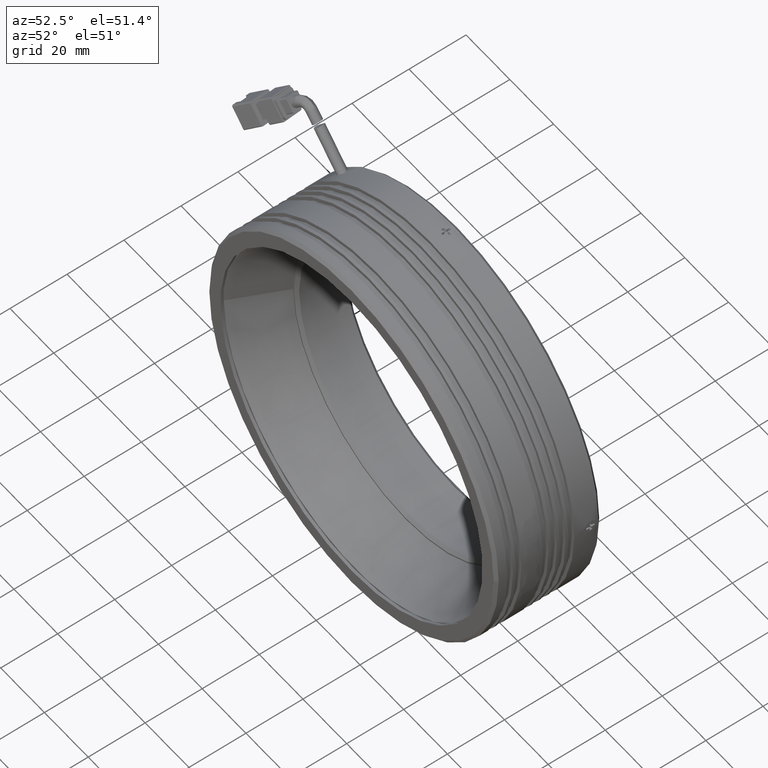
[diagram: clean part render]
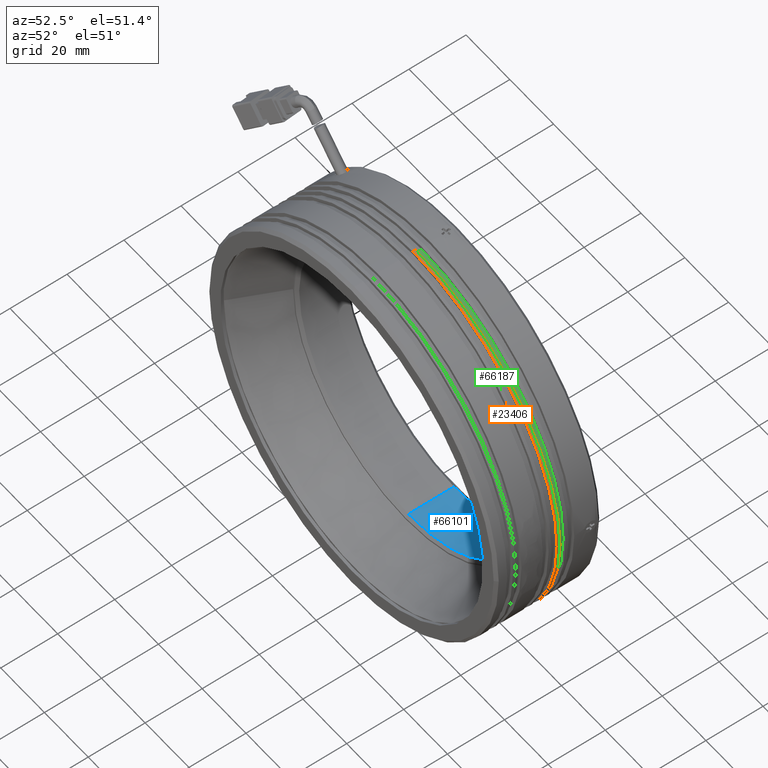
[diagram: same view with three faces highlighted in distinct colors, each labeled with its STEP entity id]
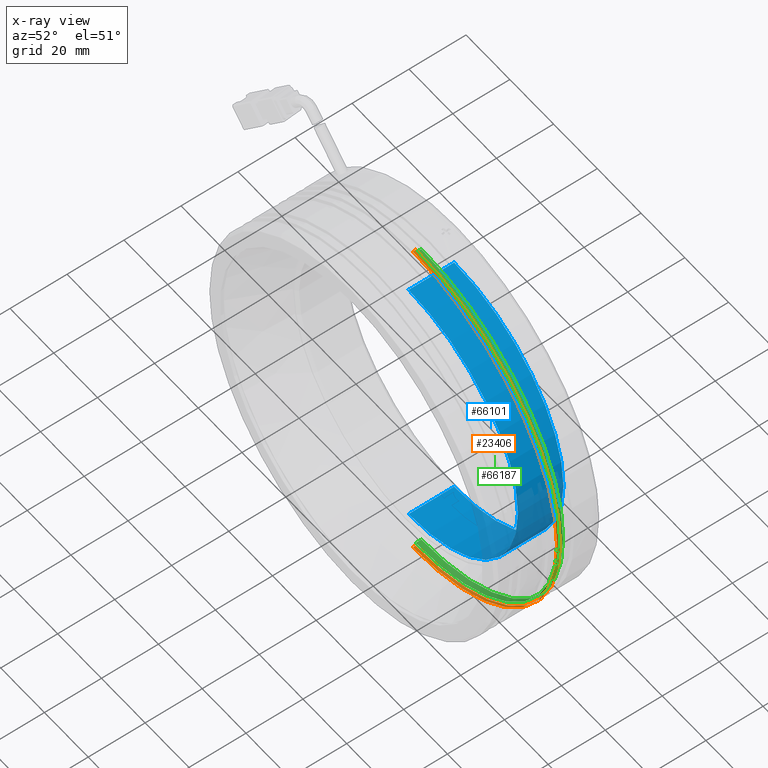
[diagram: x-ray of the same camera — body ghosted, the three highlighted faces saturated]
A machine part, auxiliary view with three faces highlighted in distinct colors.
The next image is the same camera in x-ray (body ghosted, the three faces saturated) — at least one of them is partly hidden behind the body in this view.
Their STEP definitions:

[orange] entity #23406 — the highlighted cylindrical surface (partial cylindrical patch) has radius 66 mm, axis along (-0, -1, -0).
#3441 = EDGE_CURVE ( 'NONE', #9244, #9392, #8425, .T. ) ;
#4820 = ORIENTED_EDGE ( 'NONE', *, *, #14331, .T. ) ;
#5158 = AXIS2_PLACEMENT_3D ( 'NONE', #28166, #66901, #33725 ) ;
#5260 = DIRECTION ( 'NONE',  ( -0.0000000000000000000, -1.000000000000000000, -0.0000000000000000000 ) ) ;
#5641 = ORIENTED_EDGE ( 'NONE', *, *, #3441, .F. ) ;
#7309 = CARTESIAN_POINT ( 'NONE',  ( -22.28931969498006900, 15.64734950584006500, 66.00000000000000000 ) ) ;
#8420 = CARTESIAN_POINT ( 'NONE',  ( -22.28931969498007600, 16.64734950584005100, 0.0000000000000000000 ) ) ;
#8425 = CIRCLE ( 'NONE', #40878, 66.00000000000000000 ) ;
#9244 = VERTEX_POINT ( 'NONE', #30795 ) ;
#9392 = VERTEX_POINT ( 'NONE', #64945 ) ;
#10042 = CYLINDRICAL_SURFACE ( 'NONE', #53527, 66.00000000000000000 ) ;
#10767 = EDGE_CURVE ( 'NONE', #17306, #14867, #47878, .T. ) ;
#14013 = DIRECTION ( 'NONE',  ( 0.0000000000000000000, 0.0000000000000000000, -1.000000000000000000 ) ) ;
#14331 = EDGE_CURVE ( 'NONE', #9244, #17306, #42609, .T. ) ;
#14867 = VERTEX_POINT ( 'NONE', #70782 ) ;
#17007 = FACE_OUTER_BOUND ( 'NONE', #43320, .T. ) ;
#17306 = VERTEX_POINT ( 'NONE', #7309 ) ;
#23406 = ADVANCED_FACE ( 'NONE', ( #17007 ), #10042, .T. ) ;
#27103 = CARTESIAN_POINT ( 'NONE',  ( -22.28931969498006900, -31.13173980934526600, 66.00000000000000000 ) ) ;
#27911 = DIRECTION ( 'NONE',  ( -0.0000000000000000000, -1.000000000000000000, -0.0000000000000000000 ) ) ;
#28166 = CARTESIAN_POINT ( 'NONE',  ( -22.28931969498007600, 15.64734950584006500, 0.0000000000000000000 ) ) ;
#30795 = CARTESIAN_POINT ( 'NONE',  ( -22.28931969498006900, 16.64734950584005100, 66.00000000000000000 ) ) ;
#31725 = CARTESIAN_POINT ( 'NONE',  ( -22.28931969498007600, -31.13173980934526600, 0.0000000000000000000 ) ) ;
#32689 = VECTOR ( 'NONE', #27911, 1000.000000000000000 ) ;
#33725 = DIRECTION ( 'NONE',  ( 0.0000000000000000000, 0.0000000000000000000, -1.000000000000000000 ) ) ;
#40878 = AXIS2_PLACEMENT_3D ( 'NONE', #8420, #47164, #14013 ) ;
#42609 = LINE ( 'NONE', #27103, #55618 ) ;
#43320 = EDGE_LOOP ( 'NONE', ( #5641, #4820, #45214, #70456 ) ) ;
#45214 = ORIENTED_EDGE ( 'NONE', *, *, #10767, .T. ) ;
#47164 = DIRECTION ( 'NONE',  ( 0.0000000000000000000, 1.000000000000000000, 0.0000000000000000000 ) ) ;
#47395 = LINE ( 'NONE', #66640, #32689 ) ;
#47878 = CIRCLE ( 'NONE', #5158, 66.00000000000000000 ) ;
#48165 = DIRECTION ( 'NONE',  ( -0.0000000000000000000, -1.000000000000000000, -0.0000000000000000000 ) ) ;
#51141 = EDGE_CURVE ( 'NONE', #9392, #14867, #47395, .T. ) ;
#53527 = AXIS2_PLACEMENT_3D ( 'NONE', #31725, #48165, #65180 ) ;
#55618 = VECTOR ( 'NONE', #5260, 1000.000000000000000 ) ;
#64945 = CARTESIAN_POINT ( 'NONE',  ( -22.28931969498007600, 16.64734950584005100, -66.00000000000000000 ) ) ;
#65180 = DIRECTION ( 'NONE',  ( 0.0000000000000000000, 0.0000000000000000000, -1.000000000000000000 ) ) ;
#66640 = CARTESIAN_POINT ( 'NONE',  ( -22.28931969498007600, -31.13173980934526600, -66.00000000000000000 ) ) ;
#66901 = DIRECTION ( 'NONE',  ( 0.0000000000000000000, 1.000000000000000000, 0.0000000000000000000 ) ) ;
#70456 = ORIENTED_EDGE ( 'NONE', *, *, #51141, .F. ) ;
#70782 = CARTESIAN_POINT ( 'NONE',  ( -22.28931969498007600, 15.64734950584006500, -66.00000000000000000 ) ) ;

[blue] entity #66101 — the highlighted cylindrical surface (partial cylindrical patch) has radius 50 mm, axis along (-0, -1, -0).
#4519 = LINE ( 'NONE', #15292, #61723 ) ;
#4693 = EDGE_CURVE ( 'NONE', #11871, #69297, #9749, .T. ) ;
#9294 = CARTESIAN_POINT ( 'NONE',  ( -22.28931969498007600, 14.14734950584004700, 0.0000000000000000000 ) ) ;
#9749 = CIRCLE ( 'NONE', #32183, 50.00000000000000000 ) ;
#10976 = ORIENTED_EDGE ( 'NONE', *, *, #25032, .F. ) ;
#11871 = VERTEX_POINT ( 'NONE', #50090 ) ;
#14686 = CARTESIAN_POINT ( 'NONE',  ( -22.28931969498007600, -33.34033393323987600, 0.0000000000000000000 ) ) ;
#14887 = DIRECTION ( 'NONE',  ( 0.0000000000000000000, 0.0000000000000000000, -1.000000000000000000 ) ) ;
#15292 = CARTESIAN_POINT ( 'NONE',  ( -22.28931969498006900, -33.34033393323987600, 50.00000000000000000 ) ) ;
#15613 = CARTESIAN_POINT ( 'NONE',  ( -22.28931969498007600, 30.14734950584002600, 0.0000000000000000000 ) ) ;
#21715 = LINE ( 'NONE', #63433, #36469 ) ;
#22153 = DIRECTION ( 'NONE',  ( 0.0000000000000000000, 0.0000000000000000000, 1.000000000000000000 ) ) ;
#24681 = DIRECTION ( 'NONE',  ( -0.0000000000000000000, -1.000000000000000000, -0.0000000000000000000 ) ) ;
#24813 = ORIENTED_EDGE ( 'NONE', *, *, #4693, .F. ) ;
#25032 = EDGE_CURVE ( 'NONE', #69240, #11871, #4519, .T. ) ;
#25968 = DIRECTION ( 'NONE',  ( -0.0000000000000000000, -1.000000000000000000, -0.0000000000000000000 ) ) ;
#28020 = EDGE_CURVE ( 'NONE', #36903, #69297, #21715, .T. ) ;
#31396 = DIRECTION ( 'NONE',  ( -0.0000000000000000000, -1.000000000000000000, -0.0000000000000000000 ) ) ;
#32183 = AXIS2_PLACEMENT_3D ( 'NONE', #9294, #47999, #14887 ) ;
#32198 = AXIS2_PLACEMENT_3D ( 'NONE', #14686, #31396, #53676 ) ;
#34166 = FACE_OUTER_BOUND ( 'NONE', #44621, .T. ) ;
#36469 = VECTOR ( 'NONE', #24681, 1000.000000000000000 ) ;
#36903 = VERTEX_POINT ( 'NONE', #37953 ) ;
#37953 = CARTESIAN_POINT ( 'NONE',  ( -22.28931969498007600, 30.14734950584002600, -50.00000000000000000 ) ) ;
#44621 = EDGE_LOOP ( 'NONE', ( #10976, #49873, #56919, #24813 ) ) ;
#46874 = CIRCLE ( 'NONE', #60622, 50.00000000000000000 ) ;
#47999 = DIRECTION ( 'NONE',  ( 0.0000000000000000000, 1.000000000000000000, 0.0000000000000000000 ) ) ;
#49873 = ORIENTED_EDGE ( 'NONE', *, *, #71264, .T. ) ;
#50090 = CARTESIAN_POINT ( 'NONE',  ( -22.28931969498006900, 14.14734950584004700, 50.00000000000000000 ) ) ;
#50293 = CARTESIAN_POINT ( 'NONE',  ( -22.28931969498006900, 30.14734950584002600, 50.00000000000000000 ) ) ;
#53676 = DIRECTION ( 'NONE',  ( 0.0000000000000000000, 0.0000000000000000000, -1.000000000000000000 ) ) ;
#55341 = DIRECTION ( 'NONE',  ( -0.0000000000000000000, 1.000000000000000000, -0.0000000000000000000 ) ) ;
#56085 = CARTESIAN_POINT ( 'NONE',  ( -22.28931969498007600, 14.14734950584004700, -50.00000000000000000 ) ) ;
#56919 = ORIENTED_EDGE ( 'NONE', *, *, #28020, .T. ) ;
#60622 = AXIS2_PLACEMENT_3D ( 'NONE', #15613, #55341, #22153 ) ;
#61723 = VECTOR ( 'NONE', #25968, 1000.000000000000000 ) ;
#63433 = CARTESIAN_POINT ( 'NONE',  ( -22.28931969498007600, -33.34033393323987600, -50.00000000000000000 ) ) ;
#66101 = ADVANCED_FACE ( 'NONE', ( #34166 ), #69663, .F. ) ;
#69240 = VERTEX_POINT ( 'NONE', #50293 ) ;
#69297 = VERTEX_POINT ( 'NONE', #56085 ) ;
#69663 = CYLINDRICAL_SURFACE ( 'NONE', #32198, 50.00000000000000000 ) ;
#71264 = EDGE_CURVE ( 'NONE', #69240, #36903, #46874, .T. ) ;

[green] entity #66187 — the highlighted cylindrical surface (partial cylindrical patch) has radius 64.8 mm, axis along (-0, -1, -0).
#339 = FACE_OUTER_BOUND ( 'NONE', #14409, .T. ) ;
#3914 = LINE ( 'NONE', #57409, #61117 ) ;
#3922 = EDGE_CURVE ( 'NONE', #14471, #16472, #3914, .T. ) ;
#7598 = VERTEX_POINT ( 'NONE', #63611 ) ;
#8063 = CYLINDRICAL_SURFACE ( 'NONE', #34533, 64.79999999999999700 ) ;
#10039 = DIRECTION ( 'NONE',  ( -0.0000000000000000000, -1.000000000000000000, -0.0000000000000000000 ) ) ;
#12203 = CIRCLE ( 'NONE', #57905, 64.79999999999999700 ) ;
#12295 = VECTOR ( 'NONE', #46403, 1000.000000000000000 ) ;
#13263 = CARTESIAN_POINT ( 'NONE',  ( -22.28931969498007600, -31.13173980934526600, -64.79999999999999700 ) ) ;
#14409 = EDGE_LOOP ( 'NONE', ( #51056, #26329, #71651, #25474 ) ) ;
#14471 = VERTEX_POINT ( 'NONE', #33849 ) ;
#16471 = EDGE_CURVE ( 'NONE', #16472, #7598, #45410, .T. ) ;
#16472 = VERTEX_POINT ( 'NONE', #70899 ) ;
#21111 = EDGE_CURVE ( 'NONE', #56868, #14471, #12203, .T. ) ;
#25474 = ORIENTED_EDGE ( 'NONE', *, *, #61841, .F. ) ;
#26329 = ORIENTED_EDGE ( 'NONE', *, *, #3922, .T. ) ;
#26887 = DIRECTION ( 'NONE',  ( 0.0000000000000000000, 1.000000000000000000, 0.0000000000000000000 ) ) ;
#28367 = CARTESIAN_POINT ( 'NONE',  ( -22.28931969498007600, 18.64734950584006200, 0.0000000000000000000 ) ) ;
#33849 = CARTESIAN_POINT ( 'NONE',  ( -22.28931969498006900, 18.64734950584006200, 64.79999999999999700 ) ) ;
#33914 = DIRECTION ( 'NONE',  ( 0.0000000000000000000, 0.0000000000000000000, -1.000000000000000000 ) ) ;
#34533 = AXIS2_PLACEMENT_3D ( 'NONE', #49019, #10039, #43705 ) ;
#41769 = LINE ( 'NONE', #13263, #12295 ) ;
#43705 = DIRECTION ( 'NONE',  ( 0.0000000000000000000, 0.0000000000000000000, -1.000000000000000000 ) ) ;
#45410 = CIRCLE ( 'NONE', #50434, 64.79999999999999700 ) ;
#46403 = DIRECTION ( 'NONE',  ( -0.0000000000000000000, -1.000000000000000000, -0.0000000000000000000 ) ) ;
#49019 = CARTESIAN_POINT ( 'NONE',  ( -22.28931969498007600, -31.13173980934526600, 0.0000000000000000000 ) ) ;
#50434 = AXIS2_PLACEMENT_3D ( 'NONE', #60021, #26887, #65617 ) ;
#51056 = ORIENTED_EDGE ( 'NONE', *, *, #21111, .T. ) ;
#54805 = CARTESIAN_POINT ( 'NONE',  ( -22.28931969498007600, 18.64734950584006200, -64.79999999999999700 ) ) ;
#56868 = VERTEX_POINT ( 'NONE', #54805 ) ;
#57409 = CARTESIAN_POINT ( 'NONE',  ( -22.28931969498006900, -31.13173980934526600, 64.79999999999999700 ) ) ;
#57905 = AXIS2_PLACEMENT_3D ( 'NONE', #28367, #67078, #33914 ) ;
#60021 = CARTESIAN_POINT ( 'NONE',  ( -22.28931969498007600, 16.64734950584005100, 0.0000000000000000000 ) ) ;
#61117 = VECTOR ( 'NONE', #62936, 1000.000000000000000 ) ;
#61841 = EDGE_CURVE ( 'NONE', #56868, #7598, #41769, .T. ) ;
#62936 = DIRECTION ( 'NONE',  ( -0.0000000000000000000, -1.000000000000000000, -0.0000000000000000000 ) ) ;
#63611 = CARTESIAN_POINT ( 'NONE',  ( -22.28931969498007600, 16.64734950584005100, -64.79999999999999700 ) ) ;
#65617 = DIRECTION ( 'NONE',  ( 0.0000000000000000000, 0.0000000000000000000, -1.000000000000000000 ) ) ;
#66187 = ADVANCED_FACE ( 'NONE', ( #339 ), #8063, .T. ) ;
#67078 = DIRECTION ( 'NONE',  ( -0.0000000000000000000, -1.000000000000000000, -0.0000000000000000000 ) ) ;
#70899 = CARTESIAN_POINT ( 'NONE',  ( -22.28931969498006900, 16.64734950584005100, 64.79999999999999700 ) ) ;
#71651 = ORIENTED_EDGE ( 'NONE', *, *, #16471, .T. ) ;